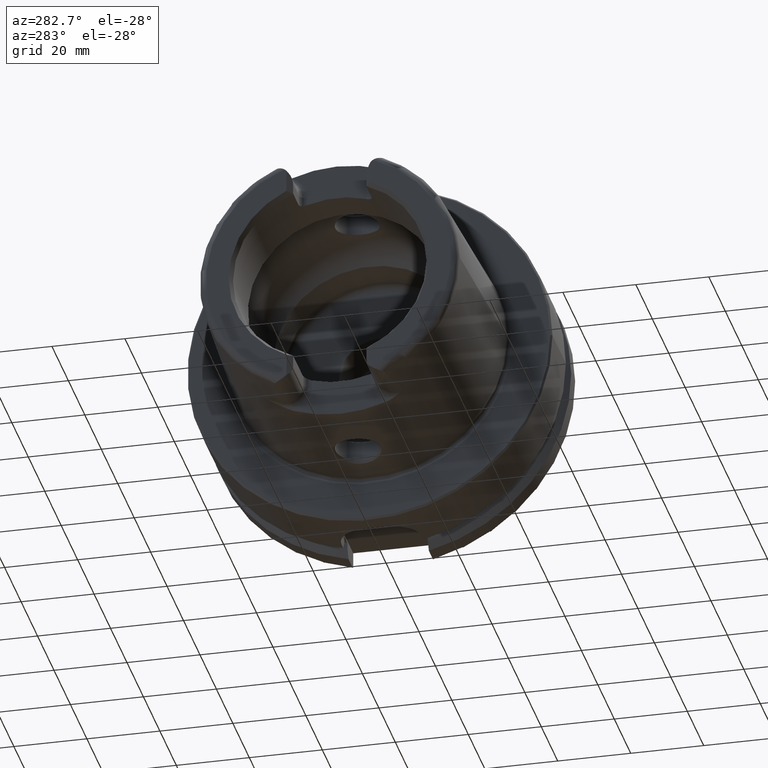
[diagram: clean part render]
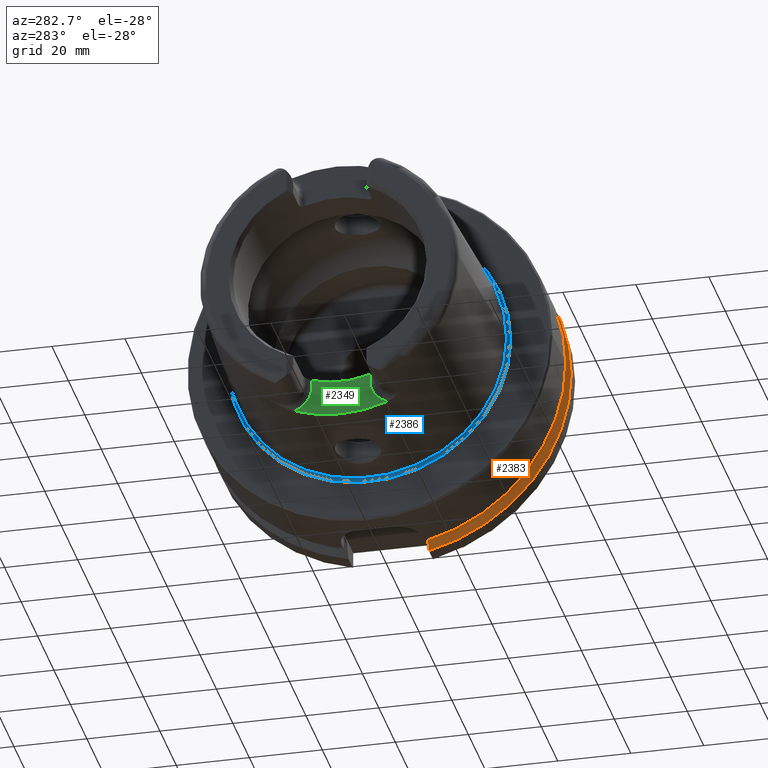
[diagram: same view with three faces highlighted in distinct colors, each labeled with its STEP entity id]
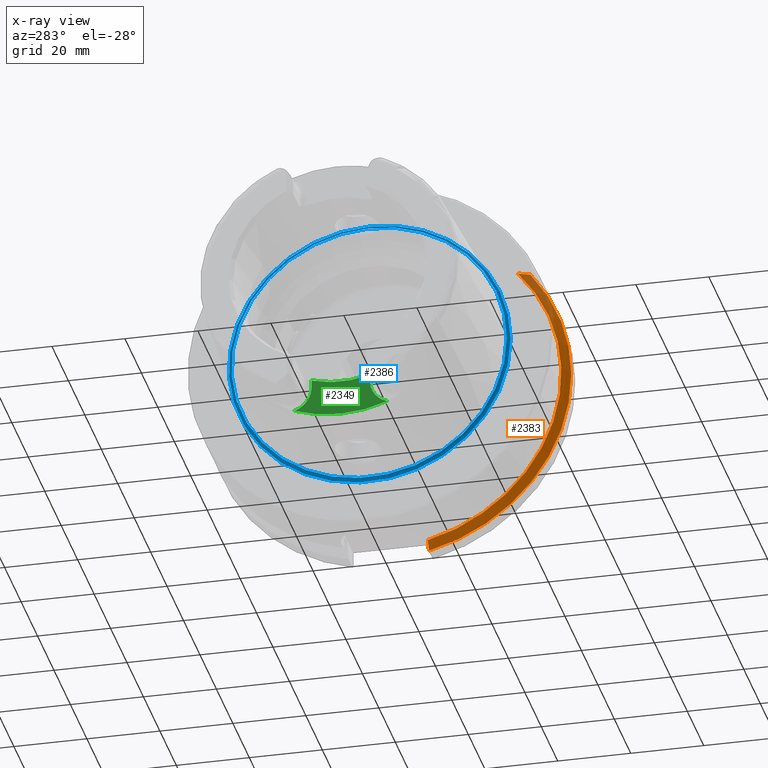
[diagram: x-ray of the same camera — body ghosted, the three highlighted faces saturated]
A machine part, auxiliary view with three faces highlighted in distinct colors.
The next image is the same camera in x-ray (body ghosted, the three faces saturated) — at least one of them is partly hidden behind the body in this view.
Their STEP definitions:

[orange] entity #2383 — the highlighted conical surface has half-angle 60 deg.
#20=(
BOUNDED_CURVE()
B_SPLINE_CURVE(2,(#4563,#4564,#4565),.UNSPECIFIED.,.F.,.F.)
B_SPLINE_CURVE_WITH_KNOTS((3,3),(0.,0.343884390880419),.UNSPECIFIED.)
CURVE()
GEOMETRIC_REPRESENTATION_ITEM()
RATIONAL_B_SPLINE_CURVE((1.,1.00052016257005,1.))
REPRESENTATION_ITEM('')
);
#25=(
BOUNDED_CURVE()
B_SPLINE_CURVE(2,(#4778,#4779,#4780),.UNSPECIFIED.,.F.,.F.)
B_SPLINE_CURVE_WITH_KNOTS((3,3),(0.,0.28292349080556),.UNSPECIFIED.)
CURVE()
GEOMETRIC_REPRESENTATION_ITEM()
RATIONAL_B_SPLINE_CURVE((1.,1.0003193410929,1.))
REPRESENTATION_ITEM('')
);
#159=CONICAL_SURFACE('',#2721,48.7987976320958,1.0471975511966);
#327=FACE_OUTER_BOUND('',#472,.T.);
#472=EDGE_LOOP('',(#2195,#2196,#2197,#2198));
#820=CIRCLE('',#2615,50.);
#872=CIRCLE('',#2720,47.5975952641917);
#1031=VERTEX_POINT('',#4560);
#1032=VERTEX_POINT('',#4562);
#1066=VERTEX_POINT('',#4775);
#1067=VERTEX_POINT('',#4777);
#1324=EDGE_CURVE('',#1032,#1031,#20,.T.);
#1374=EDGE_CURVE('',#1067,#1066,#25,.T.);
#1390=EDGE_CURVE('',#1032,#1066,#820,.T.);
#1475=EDGE_CURVE('',#1031,#1067,#872,.T.);
#2195=ORIENTED_EDGE('',*,*,#1324,.T.);
#2196=ORIENTED_EDGE('',*,*,#1475,.T.);
#2197=ORIENTED_EDGE('',*,*,#1374,.T.);
#2198=ORIENTED_EDGE('',*,*,#1390,.F.);
#2383=ADVANCED_FACE('',(#327),#159,.T.);
#2615=AXIS2_PLACEMENT_3D('',#4840,#3226,#3227);
#2720=AXIS2_PLACEMENT_3D('',#5084,#3460,#3461);
#2721=AXIS2_PLACEMENT_3D('',#5085,#3462,#3463);
#3226=DIRECTION('center_axis',(1.,0.,0.));
#3227=DIRECTION('ref_axis',(0.,0.,-1.));
#3460=DIRECTION('center_axis',(1.,0.,0.));
#3461=DIRECTION('ref_axis',(0.,0.,-1.));
#3462=DIRECTION('center_axis',(1.,0.,0.));
#3463=DIRECTION('ref_axis',(0.,-0.951449961441176,-0.307803461438603));
#4560=CARTESIAN_POINT('',(21.875,-35.6830642593065,31.5));
#4562=CARTESIAN_POINT('',(23.2620290209214,-38.8297566307078,31.5));
#4563=CARTESIAN_POINT('Ctrl Pts',(23.2620290209214,-38.8297566307078,31.5));
#4564=CARTESIAN_POINT('Ctrl Pts',(22.5392272442767,-37.2176818849707,31.5));
#4565=CARTESIAN_POINT('Ctrl Pts',(21.875,-35.6830642593065,31.5));
#4775=CARTESIAN_POINT('',(23.2620290209214,-11.,-48.7749935930288));
#4777=CARTESIAN_POINT('',(21.875,-11.,-46.3090819919138));
#4778=CARTESIAN_POINT('Ctrl Pts',(21.875,-11.,-46.3090819919138));
#4779=CARTESIAN_POINT('Ctrl Pts',(22.5505288964237,-11.,-47.5116880808802));
#4780=CARTESIAN_POINT('Ctrl Pts',(23.2620290209214,-11.,-48.7749935930288));
#4840=CARTESIAN_POINT('Origin',(23.2620290209214,0.,0.));
#5084=CARTESIAN_POINT('Origin',(21.875,0.,0.));
#5085=CARTESIAN_POINT('Origin',(22.5685145104607,0.,0.));

[blue] entity #2386 — the highlighted toroidal blend (fillet) surface has major radius 38.5073 mm and minor (blend) radius 0.8 mm.
#196=TOROIDAL_SURFACE('',#2727,38.5073016032064,0.8);
#330=FACE_OUTER_BOUND('',#475,.T.);
#475=EDGE_LOOP('',(#2208,#2209,#2210,#2211,#2212,#2213));
#863=CIRCLE('',#2703,38.6186400839745);
#864=CIRCLE('',#2704,38.6186400839745);
#874=CIRCLE('',#2725,37.7073016032064);
#875=CIRCLE('',#2726,37.7073016032064);
#876=CIRCLE('',#2728,0.8);
#1109=VERTEX_POINT('',#5061);
#1110=VERTEX_POINT('',#5062);
#1114=VERTEX_POINT('',#5091);
#1115=VERTEX_POINT('',#5092);
#1464=EDGE_CURVE('',#1109,#1110,#863,.T.);
#1465=EDGE_CURVE('',#1110,#1109,#864,.T.);
#1478=EDGE_CURVE('',#1114,#1115,#874,.T.);
#1480=EDGE_CURVE('',#1115,#1114,#875,.T.);
#1481=EDGE_CURVE('',#1115,#1110,#876,.T.);
#2208=ORIENTED_EDGE('',*,*,#1478,.T.);
#2209=ORIENTED_EDGE('',*,*,#1481,.T.);
#2210=ORIENTED_EDGE('',*,*,#1464,.F.);
#2211=ORIENTED_EDGE('',*,*,#1465,.F.);
#2212=ORIENTED_EDGE('',*,*,#1481,.F.);
#2213=ORIENTED_EDGE('',*,*,#1480,.T.);
#2386=ADVANCED_FACE('',(#330),#196,.F.);
#2703=AXIS2_PLACEMENT_3D('',#5063,#3424,#3425);
#2704=AXIS2_PLACEMENT_3D('',#5064,#3426,#3427);
#2725=AXIS2_PLACEMENT_3D('',#5093,#3471,#3472);
#2726=AXIS2_PLACEMENT_3D('',#5095,#3474,#3475);
#2727=AXIS2_PLACEMENT_3D('',#5096,#3476,#3477);
#2728=AXIS2_PLACEMENT_3D('',#5097,#3478,#3479);
#3424=DIRECTION('center_axis',(1.,0.,0.));
#3425=DIRECTION('ref_axis',(0.,0.,-1.));
#3426=DIRECTION('center_axis',(1.,0.,0.));
#3427=DIRECTION('ref_axis',(0.,0.,-1.));
#3471=DIRECTION('center_axis',(1.,0.,0.));
#3472=DIRECTION('ref_axis',(0.,0.,-1.));
#3474=DIRECTION('center_axis',(1.,0.,0.));
#3475=DIRECTION('ref_axis',(0.,0.,-1.));
#3476=DIRECTION('center_axis',(1.,0.,0.));
#3477=DIRECTION('ref_axis',(0.,0.,-1.));
#3478=DIRECTION('center_axis',(0.,-1.,-1.22464679914735E-16));
#3479=DIRECTION('ref_axis',(0.,-1.22464679914735E-16,1.));
#5061=CARTESIAN_POINT('',(0.0922144549932558,-38.6186400839745,-4.7294193966263E-15));
#5062=CARTESIAN_POINT('',(0.0922144549932559,-4.7294193966263E-15,38.6186400839745));
#5063=CARTESIAN_POINT('Origin',(0.0922144549932559,0.,0.));
#5064=CARTESIAN_POINT('Origin',(0.0922144549932559,0.,0.));
#5091=CARTESIAN_POINT('',(-0.7,-37.7073016032064,-4.61781262128506E-15));
#5092=CARTESIAN_POINT('',(-0.7,-4.61781262128506E-15,37.7073016032064));
#5093=CARTESIAN_POINT('Origin',(-0.7,0.,0.));
#5095=CARTESIAN_POINT('Origin',(-0.7,0.,0.));
#5096=CARTESIAN_POINT('Origin',(-0.7,0.,0.));
#5097=CARTESIAN_POINT('Origin',(-0.7,-4.71578436521685E-15,38.5073016032064));

[green] entity #2349 — the highlighted planar face has unit normal (-1, 0, 0).
#130=PLANE('',#2652);
#293=FACE_OUTER_BOUND('',#434,.T.);
#434=EDGE_LOOP('',(#2035,#2036,#2037,#2038,#2039,#2040));
#570=LINE('',#4955,#681);
#573=LINE('',#4967,#684);
#681=VECTOR('',#3301,10.);
#684=VECTOR('',#3316,10.);
#784=CIRCLE('',#2549,36.25399498998);
#835=CIRCLE('',#2646,6.88);
#838=CIRCLE('',#2653,26.5);
#839=CIRCLE('',#2654,6.88);
#988=VERTEX_POINT('',#4031);
#989=VERTEX_POINT('',#4042);
#1090=VERTEX_POINT('',#4939);
#1092=VERTEX_POINT('',#4944);
#1094=VERTEX_POINT('',#4964);
#1095=VERTEX_POINT('',#4966);
#1266=EDGE_CURVE('',#988,#989,#784,.T.);
#1420=EDGE_CURVE('',#1090,#988,#835,.T.);
#1422=EDGE_CURVE('',#1092,#1090,#570,.T.);
#1427=EDGE_CURVE('',#1094,#1092,#838,.T.);
#1428=EDGE_CURVE('',#1095,#1094,#573,.T.);
#1429=EDGE_CURVE('',#989,#1095,#839,.T.);
#2035=ORIENTED_EDGE('',*,*,#1420,.F.);
#2036=ORIENTED_EDGE('',*,*,#1422,.F.);
#2037=ORIENTED_EDGE('',*,*,#1427,.F.);
#2038=ORIENTED_EDGE('',*,*,#1428,.F.);
#2039=ORIENTED_EDGE('',*,*,#1429,.F.);
#2040=ORIENTED_EDGE('',*,*,#1266,.F.);
#2349=ADVANCED_FACE('',(#293),#130,.T.);
#2549=AXIS2_PLACEMENT_3D('',#4043,#3052,#3053);
#2646=AXIS2_PLACEMENT_3D('',#4941,#3297,#3298);
#2652=AXIS2_PLACEMENT_3D('',#4963,#3312,#3313);
#2653=AXIS2_PLACEMENT_3D('',#4965,#3314,#3315);
#2654=AXIS2_PLACEMENT_3D('',#4968,#3317,#3318);
#3052=DIRECTION('center_axis',(1.,0.,0.));
#3053=DIRECTION('ref_axis',(0.,1.,0.));
#3297=DIRECTION('center_axis',(-1.,0.,0.));
#3298=DIRECTION('ref_axis',(0.,0.510937901715381,-0.8596176246394));
#3301=DIRECTION('',(0.,0.,-1.));
#3312=DIRECTION('center_axis',(-1.,0.,0.));
#3313=DIRECTION('ref_axis',(0.,0.,1.));
#3314=DIRECTION('center_axis',(-1.,0.,0.));
#3315=DIRECTION('ref_axis',(0.,1.,0.));
#3316=DIRECTION('',(0.,0.,1.));
#3317=DIRECTION('center_axis',(-1.,0.,0.));
#3318=DIRECTION('ref_axis',(0.,-0.510937901715381,-0.8596176246394));
#4031=CARTESIAN_POINT('',(-35.,-12.7918651267415,-33.9222690767105));
#4042=CARTESIAN_POINT('',(-35.,12.7918651267415,-33.9222690767105));
#4043=CARTESIAN_POINT('Origin',(-35.,0.,0.));
#4939=CARTESIAN_POINT('',(-35.,-8.01,-27.37));
#4941=CARTESIAN_POINT('Origin',(-35.,-14.89,-27.37));
#4944=CARTESIAN_POINT('',(-35.,-8.01,-25.2604414054862));
#4955=CARTESIAN_POINT('',(-35.,-8.01,-28.685));
#4963=CARTESIAN_POINT('Origin',(-35.,8.88178419700125E-15,-30.));
#4964=CARTESIAN_POINT('',(-35.,8.01,-25.2604414054862));
#4965=CARTESIAN_POINT('Origin',(-35.,0.,0.));
#4966=CARTESIAN_POINT('',(-35.,8.01,-27.37));
#4967=CARTESIAN_POINT('',(-35.,8.01,-25.));
#4968=CARTESIAN_POINT('Origin',(-35.,14.89,-27.37));